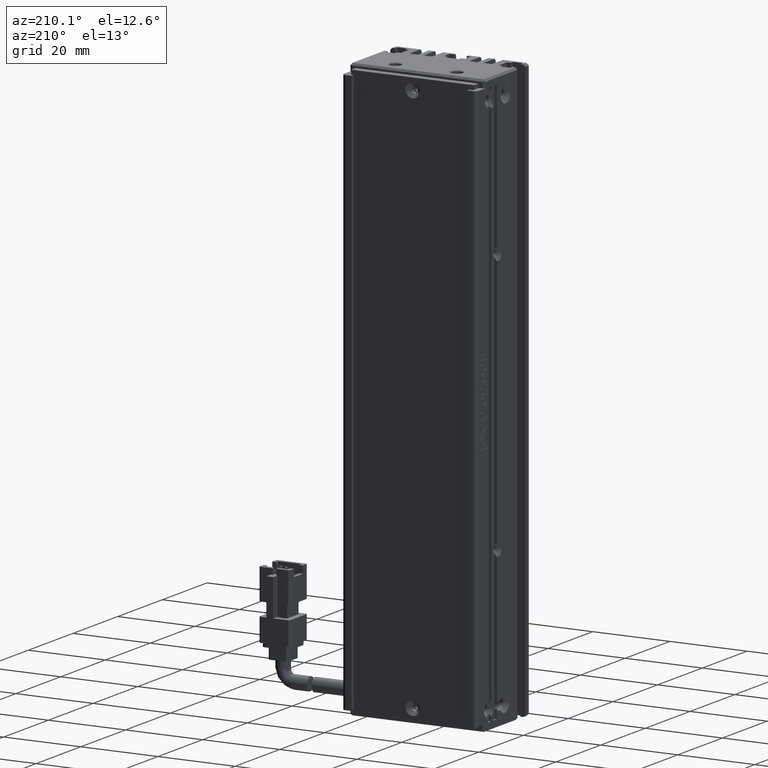
[diagram: clean part render]
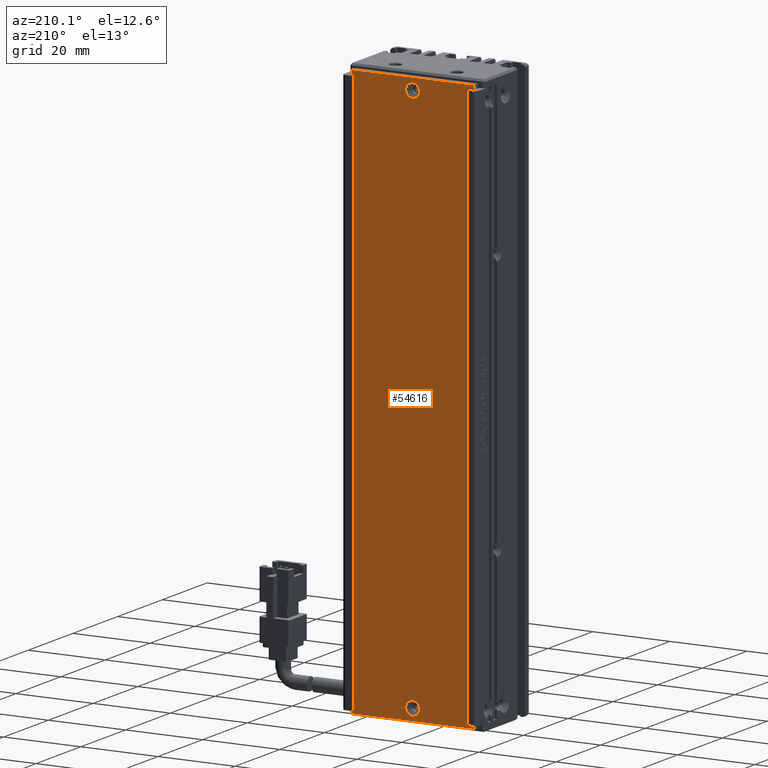
[diagram: same view with one face highlighted and labeled with its STEP entity id]
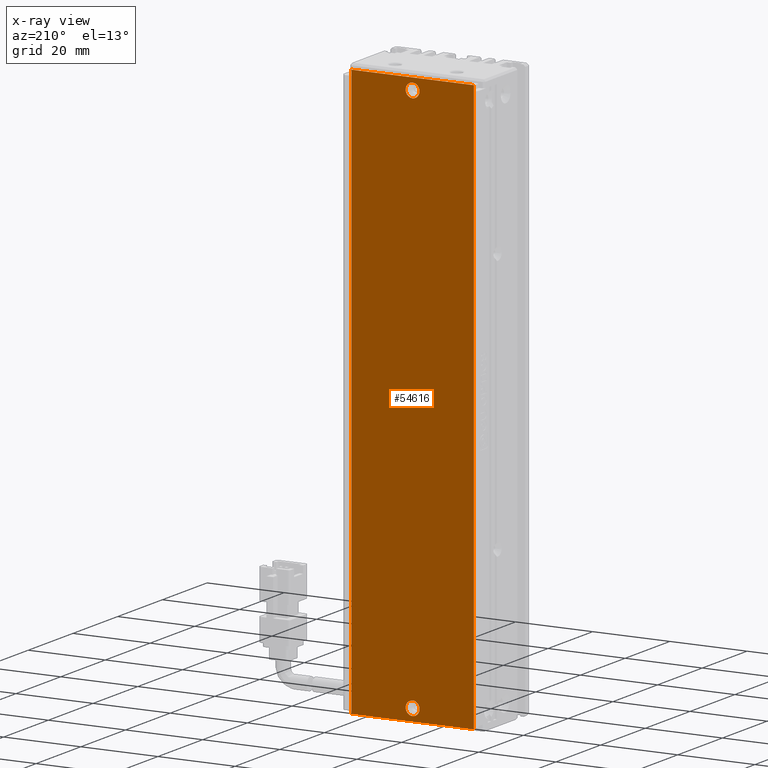
[diagram: x-ray of the same camera — body ghosted, the highlighted face saturated]
A machine part, auxiliary view. The second image highlights one B-rep face of the part: STEP entity #54616.
The next image is the same camera in x-ray: the body ghosted, the highlighted face saturated — about 0% of this face is hidden behind the body in this view.
In plain terms, the highlighted planar face has unit normal (0, 1, 0).
Its self-contained STEP definition (entity closure, byte-faithful):
#1075 = CARTESIAN_POINT ( 'NONE',  ( 40.92537974683542500, 33.49073232298697900, -42.20000000005389800 ) ) ;
#1577 = LINE ( 'NONE', #28167, #40079 ) ;
#1987 = DIRECTION ( 'NONE',  ( -1.875376730785761400E-018, -0.0000000000000000000, -1.000000000000000000 ) ) ;
#3718 = DIRECTION ( 'NONE',  ( -1.387778780781445400E-016, 0.0000000000000000000, 1.000000000000000000 ) ) ;
#5451 = DIRECTION ( 'NONE',  ( -0.0000000000000000000, -1.000000000000000000, -0.0000000000000000000 ) ) ;
#5674 = DIRECTION ( 'NONE',  ( -1.000000000000000000, -0.0000000000000000000, -1.387778780781445400E-016 ) ) ;
#8156 = VERTEX_POINT ( 'NONE', #60316 ) ;
#8977 = LINE ( 'NONE', #29039, #63708 ) ;
#9872 = ORIENTED_EDGE ( 'NONE', *, *, #51472, .T. ) ;
#10666 = DIRECTION ( 'NONE',  ( -0.0000000000000000000, -1.000000000000000000, -0.0000000000000000000 ) ) ;
#12330 = CIRCLE ( 'NONE', #12998, 1.799999999964246900 ) ;
#12716 = ORIENTED_EDGE ( 'NONE', *, *, #48697, .T. ) ;
#12759 = CIRCLE ( 'NONE', #46959, 1.799999999964246900 ) ;
#12998 = AXIS2_PLACEMENT_3D ( 'NONE', #15830, #65940, #65502 ) ;
#15830 = CARTESIAN_POINT ( 'NONE',  ( 40.92537974683545300, 33.49073232305791900, -185.9999999999999400 ) ) ;
#16013 = LINE ( 'NONE', #64575, #54411 ) ;
#16068 = DIRECTION ( 'NONE',  ( -1.631319816340922500E-017, -0.0000000000000000000, 1.000000000000000000 ) ) ;
#16283 = ORIENTED_EDGE ( 'NONE', *, *, #26228, .T. ) ;
#19242 = VERTEX_POINT ( 'NONE', #58763 ) ;
#19386 = AXIS2_PLACEMENT_3D ( 'NONE', #32743, #5451, #33439 ) ;
#19867 = VERTEX_POINT ( 'NONE', #55657 ) ;
#20011 = CARTESIAN_POINT ( 'NONE',  ( 56.82537974683545900, 33.49073232304837700, -188.9999999999999400 ) ) ;
#21070 = CARTESIAN_POINT ( 'NONE',  ( 25.02537974683544800, 33.49073232304837700, -40.99999999999995700 ) ) ;
#21706 = CARTESIAN_POINT ( 'NONE',  ( 40.92537974683545300, 33.49073232305791900, -185.9999999999999400 ) ) ;
#22985 = AXIS2_PLACEMENT_3D ( 'NONE', #70867, #10666, #49063 ) ;
#24873 = EDGE_CURVE ( 'NONE', #8156, #42578, #12330, .T. ) ;
#25416 = CARTESIAN_POINT ( 'NONE',  ( 56.82537974683545200, 33.49073232304837700, -40.99999999999995000 ) ) ;
#26030 = ORIENTED_EDGE ( 'NONE', *, *, #54116, .T. ) ;
#26061 = ORIENTED_EDGE ( 'NONE', *, *, #31025, .T. ) ;
#26068 = DIRECTION ( 'NONE',  ( -0.0000000000000000000, -1.000000000000000000, -0.0000000000000000000 ) ) ;
#26158 = EDGE_CURVE ( 'NONE', #42578, #8156, #12759, .T. ) ;
#26228 = EDGE_CURVE ( 'NONE', #28077, #19242, #1577, .T. ) ;
#26394 = FACE_BOUND ( 'NONE', #31377, .T. ) ;
#28077 = VERTEX_POINT ( 'NONE', #20011 ) ;
#28167 = CARTESIAN_POINT ( 'NONE',  ( 25.02537974683545100, 33.49073232304837700, -188.9999999999999400 ) ) ;
#28576 = VERTEX_POINT ( 'NONE', #25416 ) ;
#28949 = CIRCLE ( 'NONE', #19386, 1.799999999946067000 ) ;
#29039 = CARTESIAN_POINT ( 'NONE',  ( 56.82537974683545200, 33.49073232304837700, -40.99999999999995000 ) ) ;
#31025 = EDGE_CURVE ( 'NONE', #28576, #28077, #8977, .T. ) ;
#31377 = EDGE_LOOP ( 'NONE', ( #50253, #53590 ) ) ;
#32743 = CARTESIAN_POINT ( 'NONE',  ( 40.92537974683542500, 33.49073232298697900, -43.99999999999996400 ) ) ;
#33439 = DIRECTION ( 'NONE',  ( 0.0000000000000000000, 0.0000000000000000000, 1.000000000000000000 ) ) ;
#36558 = DIRECTION ( 'NONE',  ( 0.0000000000000000000, 1.000000000000000000, 0.0000000000000000000 ) ) ;
#37486 = PLANE ( 'NONE',  #69828 ) ;
#38244 = DIRECTION ( 'NONE',  ( 1.000000000000000000, 0.0000000000000000000, 1.387778780781445400E-016 ) ) ;
#39182 = FACE_OUTER_BOUND ( 'NONE', #48167, .T. ) ;
#40079 = VECTOR ( 'NONE', #5674, 1000.000000000000000 ) ;
#40987 = CARTESIAN_POINT ( 'NONE',  ( 40.92537974683545300, 33.49073232305791900, -184.2000000000356900 ) ) ;
#42578 = VERTEX_POINT ( 'NONE', #40987 ) ;
#43692 = LINE ( 'NONE', #21070, #48798 ) ;
#44819 = VERTEX_POINT ( 'NONE', #1075 ) ;
#46814 = ORIENTED_EDGE ( 'NONE', *, *, #59747, .T. ) ;
#46959 = AXIS2_PLACEMENT_3D ( 'NONE', #21706, #26068, #64332 ) ;
#48167 = EDGE_LOOP ( 'NONE', ( #16283, #9872, #46814, #26061 ) ) ;
#48697 = EDGE_CURVE ( 'NONE', #61949, #44819, #53634, .T. ) ;
#48798 = VECTOR ( 'NONE', #16068, 1000.000000000000000 ) ;
#49015 = CARTESIAN_POINT ( 'NONE',  ( 40.92537974683542500, 33.49073232298697900, -45.79999999994603100 ) ) ;
#49063 = DIRECTION ( 'NONE',  ( 0.0000000000000000000, 0.0000000000000000000, 1.000000000000000000 ) ) ;
#50253 = ORIENTED_EDGE ( 'NONE', *, *, #26158, .T. ) ;
#51472 = EDGE_CURVE ( 'NONE', #19242, #19867, #43692, .T. ) ;
#53590 = ORIENTED_EDGE ( 'NONE', *, *, #24873, .T. ) ;
#53634 = CIRCLE ( 'NONE', #22985, 1.799999999946067000 ) ;
#54116 = EDGE_CURVE ( 'NONE', #44819, #61949, #28949, .T. ) ;
#54411 = VECTOR ( 'NONE', #38244, 1000.000000000000000 ) ;
#54616 = ADVANCED_FACE ( 'NONE', ( #39182, #69985, #26394 ), #37486, .T. ) ;
#55657 = CARTESIAN_POINT ( 'NONE',  ( 25.02537974683544100, 33.49073232304837700, -40.99999999999995700 ) ) ;
#58763 = CARTESIAN_POINT ( 'NONE',  ( 25.02537974683545100, 33.49073232304837700, -188.9999999999999400 ) ) ;
#59747 = EDGE_CURVE ( 'NONE', #19867, #28576, #16013, .T. ) ;
#60316 = CARTESIAN_POINT ( 'NONE',  ( 40.92537974683545300, 33.49073232305791900, -187.7999999999642000 ) ) ;
#61949 = VERTEX_POINT ( 'NONE', #49015 ) ;
#63708 = VECTOR ( 'NONE', #1987, 1000.000000000000000 ) ;
#64332 = DIRECTION ( 'NONE',  ( 0.0000000000000000000, 0.0000000000000000000, 1.000000000000000000 ) ) ;
#64575 = CARTESIAN_POINT ( 'NONE',  ( 25.02537974683544800, 33.49073232304837700, -40.99999999999995700 ) ) ;
#65502 = DIRECTION ( 'NONE',  ( 0.0000000000000000000, 0.0000000000000000000, 1.000000000000000000 ) ) ;
#65940 = DIRECTION ( 'NONE',  ( -0.0000000000000000000, -1.000000000000000000, -0.0000000000000000000 ) ) ;
#69244 = CARTESIAN_POINT ( 'NONE',  ( 56.82537974683545200, 33.49073232304837700, -40.99999999999995000 ) ) ;
#69828 = AXIS2_PLACEMENT_3D ( 'NONE', #69244, #36558, #3718 ) ;
#69985 = FACE_BOUND ( 'NONE', #70696, .T. ) ;
#70696 = EDGE_LOOP ( 'NONE', ( #26030, #12716 ) ) ;
#70867 = CARTESIAN_POINT ( 'NONE',  ( 40.92537974683542500, 33.49073232298697900, -43.99999999999996400 ) ) ;